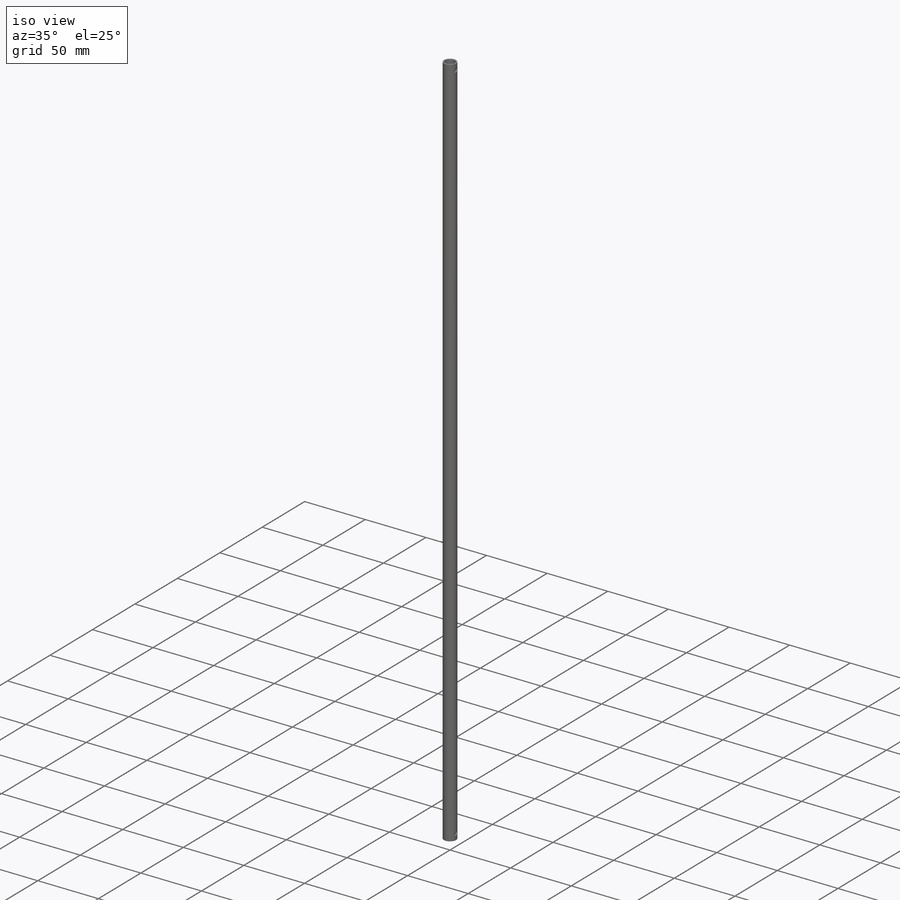
[diagram: iso view]
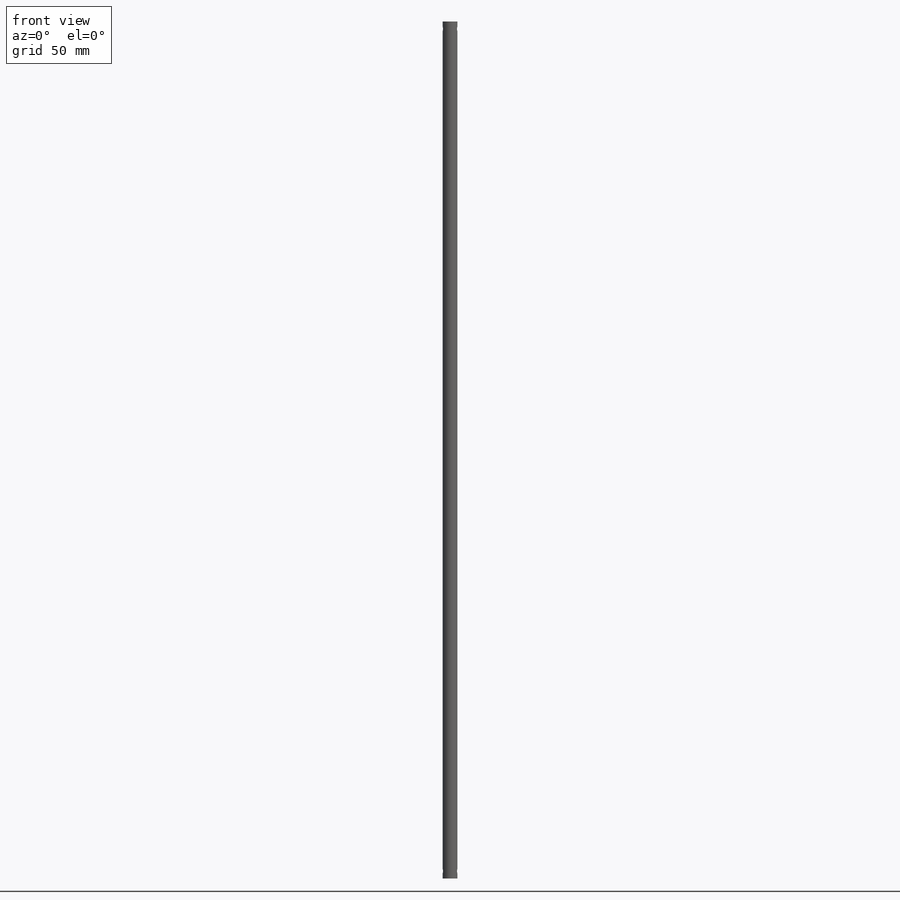
[diagram: front view]
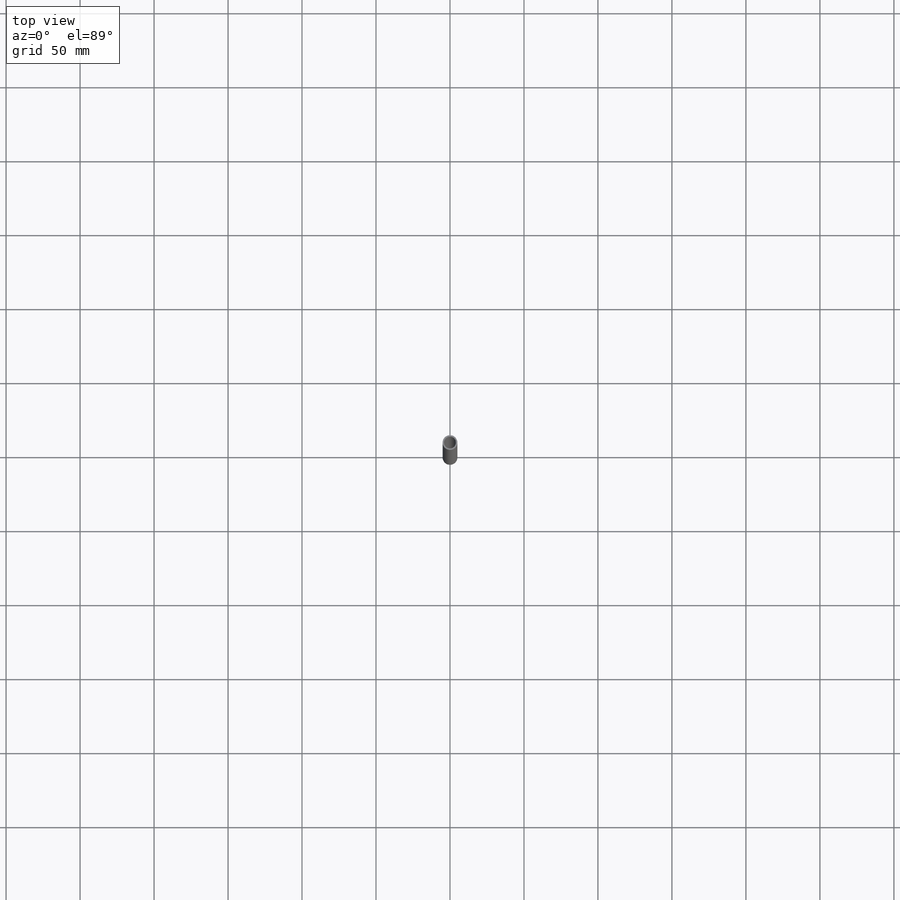
[diagram: top view]
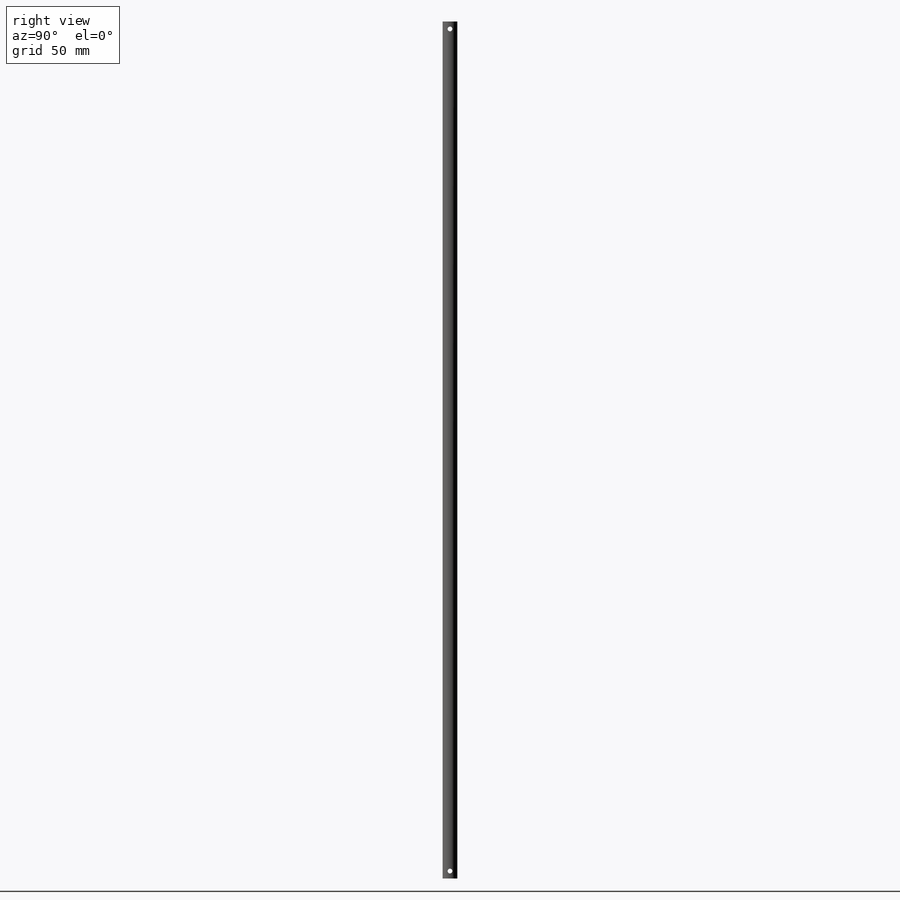
[diagram: right view]
SOLIDWORKS PART (.sldprt)
format: sldprt  version: not decoded by parser v0  size: 231,424 bytes
history: native  units: mm
features: sketch x3, plane x2, material x1, extrude x1, hole x1, mirror x1 (+13 scaffold rows collapsed)
feature tree (22):
  scaffold x13  (default folders/planes/origin — collapsed)
  material  "Toray T700"
  sketch  "Sketch1"  dims[c1.D1=10.0mm c1.D2=8.0mm c2.D1=4.0mm c2.D2=2.5mm]
  extrude  "Boss-Extrude1"  Depth=579mm
  plane  "Plane1"
  hole  "M3 Clearance Hole1"  Diameter=3.2mm Depth=10mm
  sketch  "Sketch3"  dims[D1=5.0mm]
  sketch  "Sketch2"  dims[hole-wizard template sketch: 60 standard entries collapsed; hole parameters kept: c18.Thru Hole Depth=10.0mm]
  plane  "Plane2"
  mirror  "Mirror1"
decode coverage: 5 of 6 modeling features carry decoded parameters
note: ~ marks probable driven/reference dimensions
note: suppression state not decoded; provenance and decode notes live in map.json
